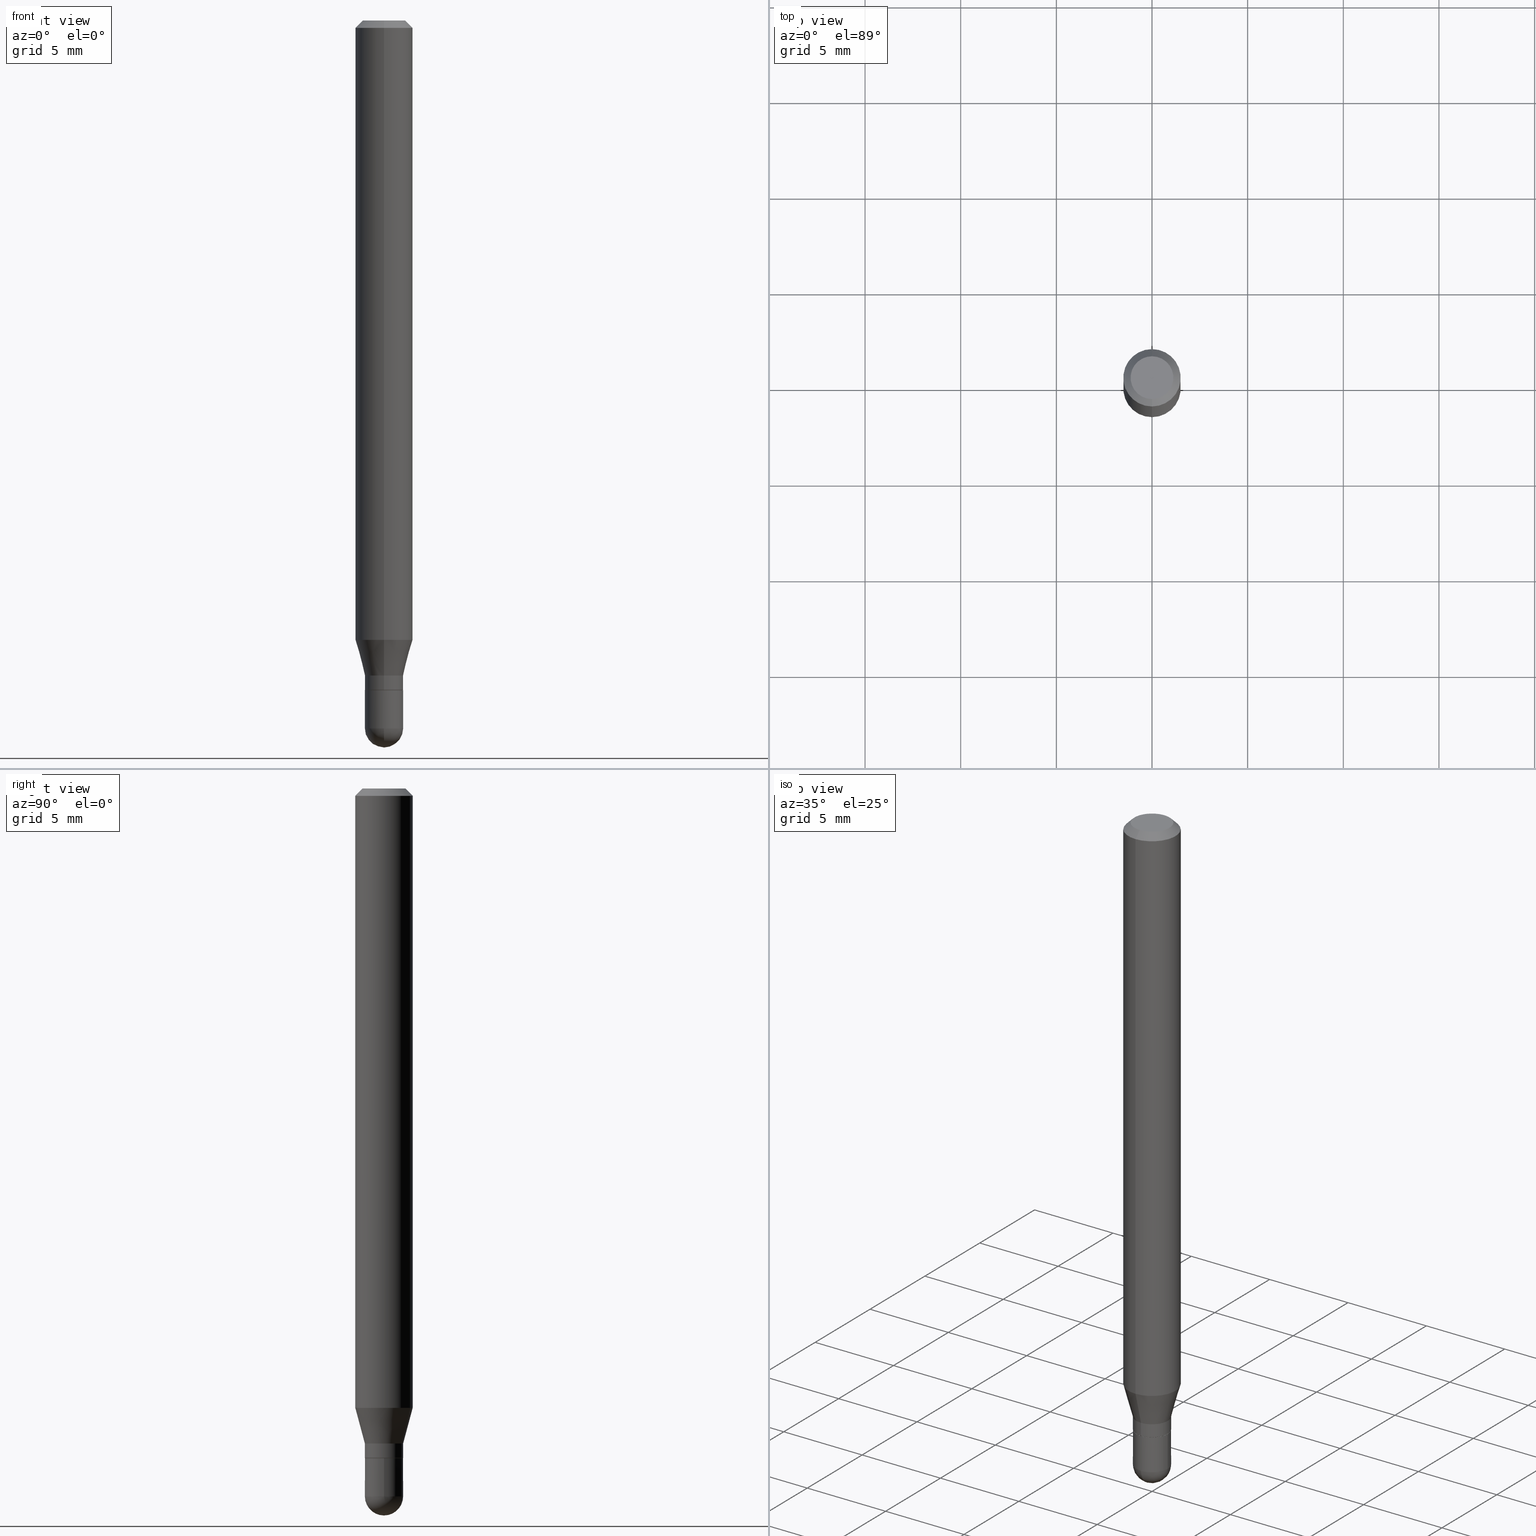
[diagram: canonical four-view strip — front | top / right | iso, engineering-drawing reading convention]
A machine part, canonical four-view strip (front | top / right | iso — engineering-drawing reading convention). The complete STEP part file that produces these views, byte-faithful:
ISO-10303-21;
HEADER;
FILE_DESCRIPTION (( 'STEP AP203' ),
    '1' );
FILE_NAME ('02937.STEP',
    '2024-03-07T21:52:46',
    ( '' ),
    ( '' ),
    'SwSTEP 2.0',
    'SolidWorks 2023',
    '' );
FILE_SCHEMA (( 'CONFIG_CONTROL_DESIGN' ));
ENDSEC;

DATA;
#1 = CARTESIAN_POINT ( 'NONE',  ( 3.668162005102807892E-31, -5.237281014988430582E-17, -0.01500000000000009139 ) ) ;
#2 = ADVANCED_FACE ( 'NONE', ( #409 ), #485, .T. ) ;
#3 = AXIS2_PLACEMENT_3D ( 'NONE', #427, #500, #144 ) ;
#4 = CARTESIAN_POINT ( 'NONE',  ( 3.369856014923117948E-29, -4.811261284925853951E-15, -1.377999999999999892 ) ) ;
#5 = DIRECTION ( 'NONE',  ( 1.000000000000000000, 0.000000000000000000, 0.000000000000000000 ) ) ;
#6 = ORIENTED_EDGE ( 'NONE', *, *, #54, .F. ) ;
#7 = ORIENTED_EDGE ( 'NONE', *, *, #68, .T. ) ;
#8 = CIRCLE ( 'NONE', #292, 0.04404999999999999888 ) ;
#9 = CARTESIAN_POINT ( 'NONE',  ( 3.559071604062276693E-29, -5.091034425514398258E-15, -1.456749999999999989 ) ) ;
#10 = EDGE_LOOP ( 'NONE', ( #512, #134, #327, #281, #200 ) ) ;
#11 = CARTESIAN_POINT ( 'NONE',  ( 0.000000000000000000, 0.000000000000000000, 0.000000000000000000 ) ) ;
#12 = CC_DESIGN_PERSON_AND_ORGANIZATION_ASSIGNMENT ( #305, #196, ( #242 ) ) ;
#13 = AXIS2_PLACEMENT_3D ( 'NONE', #478, #230, #438 ) ;
#14 = CIRCLE ( 'NONE', #29, 0.03934999999999999609 ) ;
#15 = ORIENTED_EDGE ( 'NONE', *, *, #149, .T. ) ;
#16 = DIRECTION ( 'NONE',  ( -1.000000000000000000, 6.982962677686265922E-15, -4.876176775795935793E-29 ) ) ;
#17 = FACE_OUTER_BOUND ( 'NONE', #402, .T. ) ;
#18 = DIRECTION ( 'NONE',  ( -2.445468806185136877E-29, 3.491481338843145188E-15, 1.000000000000000000 ) ) ;
#19 = CYLINDRICAL_SURFACE ( 'NONE', #362, 0.03934999999999992670 ) ;
#20 = DIRECTION ( 'NONE',  ( -2.445468806185136597E-29, 3.491481338843145583E-15, 1.000000000000000000 ) ) ;
#21 = CARTESIAN_POINT ( 'NONE',  ( 3.369818162021092251E-29, -4.811315492436009059E-15, -1.377999999999999892 ) ) ;
#22 = CIRCLE ( 'NONE', #363, 0.03935000000000000303 ) ;
#23 = CARTESIAN_POINT ( 'NONE',  ( 0.000000000000000000, 0.000000000000000000, 0.000000000000000000 ) ) ;
#24 = CARTESIAN_POINT ( 'NONE',  ( 3.296699466052710378E-29, -4.706919024203907361E-15, -1.348100000000000076 ) ) ;
#25 = DIRECTION ( 'NONE',  ( -2.445468806185136597E-29, 3.491481338843145583E-15, 1.000000000000000000 ) ) ;
#26 = ORIENTED_EDGE ( 'NONE', *, *, #125, .F. ) ;
#27 = CARTESIAN_POINT ( 'NONE',  ( 2.241566850932911875E-45, -3.200435394043974313E-31, -9.166308008539417533E-17 ) ) ;
#28 = CIRCLE ( 'NONE', #484, 0.03934999999999999609 ) ;
#29 = AXIS2_PLACEMENT_3D ( 'NONE', #294, #25, #302 ) ;
#30 =( CONVERSION_BASED_UNIT ( 'INCH', #265 ) LENGTH_UNIT ( ) NAMED_UNIT ( #464 ) );
#31 = DIRECTION ( 'NONE',  ( -2.445441336735190408E-29, 3.491520676658932537E-15, 1.000000000000000000 ) ) ;
#32 = MANIFOLD_SOLID_BREP ( 'Body-Move/Copy2[2]', #190 ) ;
#33 = EDGE_CURVE ( 'NONE', #270, #511, #28, .T. ) ;
#34 = APPROVAL_STATUS ( 'not_yet_approved' ) ;
#35 = VERTEX_POINT ( 'NONE', #99 ) ;
#36 = VERTEX_POINT ( 'NONE', #293 ) ;
#37 = CIRCLE ( 'NONE', #225, 0.03885000000000000259 ) ;
#38 = AXIS2_PLACEMENT_3D ( 'NONE', #426, #106, #260 ) ;
#39 = CC_DESIGN_APPROVAL ( #160, ( #277 ) ) ;
#40 = PERSON_AND_ORGANIZATION ( #474, #122 ) ;
#41 = EDGE_CURVE ( 'NONE', #497, #232, #348, .T. ) ;
#42 = EDGE_LOOP ( 'NONE', ( #371, #331, #189, #354 ) ) ;
#43 = PERSON_AND_ORGANIZATION ( #474, #122 ) ;
#44 = EDGE_LOOP ( 'NONE', ( #179, #143, #167, #395 ) ) ;
#45 = ORIENTED_EDGE ( 'NONE', *, *, #166, .T. ) ;
#46 = CIRCLE ( 'NONE', #13, 0.03934999999999997528 ) ;
#47 = DIRECTION ( 'NONE',  ( -6.982962677686266711E-15, -1.000000000000000000, 6.942434545525451034E-15 ) ) ;
#48 = CARTESIAN_POINT ( 'NONE',  ( 3.653618261911701929E-29, -5.230833708775198744E-15, -1.496099999999999985 ) ) ;
#49 = CARTESIAN_POINT ( 'NONE',  ( 2.795985665216317880E-16, 0.03934999999999522213, -1.348100000000000298 ) ) ;
#50 = ORIENTED_EDGE ( 'NONE', *, *, #102, .T. ) ;
#51 = VECTOR ( 'NONE', #130, 39.37007874015748143 ) ;
#52 = CYLINDRICAL_SURFACE ( 'NONE', #319, 0.03934999999999992670 ) ;
#53 = FACE_OUTER_BOUND ( 'NONE', #431, .T. ) ;
#54 = EDGE_CURVE ( 'NONE', #261, #35, #314, .T. ) ;
#55 = VERTEX_POINT ( 'NONE', #255 ) ;
#56 = CC_DESIGN_PERSON_AND_ORGANIZATION_ASSIGNMENT ( #43, #117, ( #150 ) ) ;
#57 = CARTESIAN_POINT ( 'NONE',  ( 3.368595441352724894E-29, -4.809569732097678791E-15, -1.377499999999999947 ) ) ;
#58 = CARTESIAN_POINT ( 'NONE',  ( 3.559071604062276693E-29, -5.091034425514398258E-15, -1.456749999999999989 ) ) ;
#59 = DIRECTION ( 'NONE',  ( -2.445441336735190408E-29, 3.491520676658932537E-15, 1.000000000000000000 ) ) ;
#60 = DIRECTION ( 'NONE',  ( -2.445441336735190408E-29, 3.491520676658932931E-15, 1.000000000000000000 ) ) ;
#61 = DIRECTION ( 'NONE',  ( -6.982962677686266711E-15, -1.000000000000000000, 6.942434545525451034E-15 ) ) ;
#62 = ADVANCED_FACE ( 'NONE', ( #137 ), #414, .F. ) ;
#63 = CARTESIAN_POINT ( 'NONE',  ( 3.562436683410197186E-29, -5.086215440359751413E-15, -1.456749999999999767 ) ) ;
#64 = CARTESIAN_POINT ( 'NONE',  ( -2.747795813669210945E-16, -0.03935000000000463127, -1.348099999999999854 ) ) ;
#65 = CONICAL_SURFACE ( 'NONE', #355, 0.03885000000000000259, 0.7853981633974739252 ) ;
#66 = DIRECTION ( 'NONE',  ( -2.445441336735190408E-29, 3.491520676658932931E-15, 1.000000000000000000 ) ) ;
#67 = CC_DESIGN_PERSON_AND_ORGANIZATION_ASSIGNMENT ( #40, #146, ( #277 ) ) ;
#68 = EDGE_CURVE ( 'NONE', #55, #487, #257, .T. ) ;
#69 = ADVANCED_FACE ( 'NONE', ( #444 ), #52, .T. ) ;
#70 = FACE_OUTER_BOUND ( 'NONE', #236, .T. ) ;
#71 = ORIENTED_EDGE ( 'NONE', *, *, #259, .T. ) ;
#72 = FACE_OUTER_BOUND ( 'NONE', #208, .T. ) ;
#73 = DIRECTION ( 'NONE',  ( -6.982962677686265133E-15, -1.000000000000000000, 0.000000000000000000 ) ) ;
#74 = AXIS2_PLACEMENT_3D ( 'NONE', #1, #501, #176 ) ;
#75 = LOCAL_TIME ( 16, 52, 46.00000000000000000, #446 ) ;
#76 = PERSON_AND_ORGANIZATION ( #474, #122 ) ;
#77 = ORIENTED_EDGE ( 'NONE', *, *, #180, .T. ) ;
#78 = DATE_AND_TIME ( #185, #119 ) ;
#79 = DIRECTION ( 'NONE',  ( 2.445441336735190408E-29, -3.491520676658932537E-15, -1.000000000000000000 ) ) ;
#80 = EDGE_LOOP ( 'NONE', ( #77, #197 ) ) ;
#81 = ADVANCED_BREP_SHAPE_REPRESENTATION ( '02937', ( #184, #32, #461 ), #282 ) ;
#82 = SECURITY_CLASSIFICATION_LEVEL ( 'unclassified' ) ;
#83 = ORIENTED_EDGE ( 'NONE', *, *, #201, .T. ) ;
#84 = DIRECTION ( 'NONE',  ( -6.982962677686265133E-15, -1.000000000000000000, 0.000000000000000000 ) ) ;
#85 = CLOSED_SHELL ( 'NONE', ( #477, #310, #62, #195, #2 ) ) ;
#86 = CIRCLE ( 'NONE', #216, 0.03934999999999992670 ) ;
#87 = APPROVAL_STATUS ( 'not_yet_approved' ) ;
#88 = CARTESIAN_POINT ( 'NONE',  ( -2.747795813669188758E-16, -0.03935000000000507536, -1.456749999999999323 ) ) ;
#89 = DATE_AND_TIME ( #392, #278 ) ;
#90 = PRODUCT_DEFINITION_SHAPE ( 'NONE', 'NONE',  #277 ) ;
#91 = AXIS2_PLACEMENT_3D ( 'NONE', #23, #20, #491 ) ;
#92 = APPROVAL_ROLE ( '' ) ;
#93 = VERTEX_POINT ( 'NONE', #498 ) ;
#94 = EDGE_CURVE ( 'NONE', #373, #261, #417, .T. ) ;
#95 = FACE_OUTER_BOUND ( 'NONE', #183, .T. ) ;
#96 = ADVANCED_FACE ( 'NONE', ( #211 ), #19, .T. ) ;
#97 = ORIENTED_EDGE ( 'NONE', *, *, #166, .F. ) ;
#98 = CONICAL_SURFACE ( 'NONE', #74, 0.05904999999999999832, 0.7853981633974483900 ) ;
#99 = CARTESIAN_POINT ( 'NONE',  ( -2.747795813669213410E-16, -0.03935000000000487413, -1.377499999999999725 ) ) ;
#100 = SPHERICAL_SURFACE ( 'NONE', #118, 0.03934999999999997528 ) ;
#101 = CARTESIAN_POINT ( 'NONE',  ( -0.03935000000000000303, -4.669139796121204075E-15, -1.377999999999999892 ) ) ;
#102 = EDGE_CURVE ( 'NONE', #405, #232, #123, .T. ) ;
#103 = DIRECTION ( 'NONE',  ( -6.982962677686265922E-15, -1.000000000000000000, 4.626330217890369336E-15 ) ) ;
#104 = CARTESIAN_POINT ( 'NONE',  ( -4.123439461173426262E-16, -0.05905000000000441146, -1.274578599090892883 ) ) ;
#105 = VECTOR ( 'NONE', #318, 39.37007874015748143 ) ;
#106 = DIRECTION ( 'NONE',  ( -2.445441336735190408E-29, 3.491520676658932537E-15, 1.000000000000000000 ) ) ;
#107 = VECTOR ( 'NONE', #60, 39.37007874015748143 ) ;
#108 = ORIENTED_EDGE ( 'NONE', *, *, #155, .T. ) ;
#109 = DIRECTION ( 'NONE',  ( -6.982962677686265133E-15, -1.000000000000000000, 0.000000000000000000 ) ) ;
#110 = DIRECTION ( 'NONE',  ( -2.445468806185136597E-29, 3.491481338843145583E-15, 1.000000000000000000 ) ) ;
#111 = PERSON_AND_ORGANIZATION_ROLE ( 'design_owner' ) ;
#112 = VERTEX_POINT ( 'NONE', #48 ) ;
#113 = VECTOR ( 'NONE', #370, 39.37007874015748143 ) ;
#114 = DIRECTION ( 'NONE',  ( -2.445468806185136597E-29, 3.491481338843145583E-15, 1.000000000000000000 ) ) ;
#115 = APPROVAL_ROLE ( '' ) ;
#116 = LINE ( 'NONE', #165, #51 ) ;
#117 = PERSON_AND_ORGANIZATION_ROLE ( 'creator' ) ;
#118 = AXIS2_PLACEMENT_3D ( 'NONE', #58, #214, #47 ) ;
#119 = LOCAL_TIME ( 16, 52, 46.00000000000000000, #432 ) ;
#120 = ORIENTED_EDGE ( 'NONE', *, *, #486, .T. ) ;
#121 = AXIS2_PLACEMENT_3D ( 'NONE', #191, #276, #473 ) ;
#122 = ORGANIZATION ( 'UNSPECIFIED', 'UNSPECIFIED', '' ) ;
#123 = LINE ( 'NONE', #286, #341 ) ;
#124 = LINE ( 'NONE', #368, #508 ) ;
#125 = EDGE_CURVE ( 'NONE', #93, #229, #233, .T. ) ;
#126 = ORIENTED_EDGE ( 'NONE', *, *, #424, .F. ) ;
#127 = CARTESIAN_POINT ( 'NONE',  ( 3.668162005102807892E-31, -5.237281014988430582E-17, -0.01500000000000009139 ) ) ;
#128 = DIRECTION ( 'NONE',  ( -2.445441336735190408E-29, 3.491520676658932537E-15, 1.000000000000000000 ) ) ;
#129 = DIRECTION ( 'NONE',  ( -2.445468806185136597E-29, 3.491481338843145583E-15, 1.000000000000000000 ) ) ;
#130 = DIRECTION ( 'NONE',  ( 4.937700262164548042E-15, 0.7071067811865451302, -0.7071067811865499042 ) ) ;
#131 = VECTOR ( 'NONE', #213, 39.37007874015748143 ) ;
#132 = VECTOR ( 'NONE', #222, 39.37007874015748143 ) ;
#133 = PLANE ( 'NONE',  #3 ) ;
#134 = ORIENTED_EDGE ( 'NONE', *, *, #125, .T. ) ;
#135 = DIRECTION ( 'NONE',  ( -6.982962677686265133E-15, -1.000000000000000000, 3.491520676658932142E-15 ) ) ;
#136 = APPROVAL_PERSON_ORGANIZATION ( #235, #449, #115 ) ;
#137 = FACE_OUTER_BOUND ( 'NONE', #80, .T. ) ;
#138 = LINE ( 'NONE', #337, #234 ) ;
#139 = CARTESIAN_POINT ( 'NONE',  ( 4.195754854663704558E-16, 0.05904999999999558519, -1.274578599090893327 ) ) ;
#140 = CIRCLE ( 'NONE', #209, 0.05904999999999999832 ) ;
#141 = CARTESIAN_POINT ( 'NONE',  ( 2.241566850932911875E-45, -3.200435394043974313E-31, -9.166308008539417533E-17 ) ) ;
#142 = CONICAL_SURFACE ( 'NONE', #121, 0.03934999999999992670, 0.2617993877991502960 ) ;
#143 = ORIENTED_EDGE ( 'NONE', *, *, #54, .T. ) ;
#144 = DIRECTION ( 'NONE',  ( 6.982962677686265922E-15, 1.000000000000000000, -3.491520676658932931E-15 ) ) ;
#145 = DIRECTION ( 'NONE',  ( -2.445468806185136597E-29, 3.491481338843145583E-15, 1.000000000000000000 ) ) ;
#146 = PERSON_AND_ORGANIZATION_ROLE ( 'creator' ) ;
#147 = ORIENTED_EDGE ( 'NONE', *, *, #385, .F. ) ;
#148 = CALENDAR_DATE ( 2024, 7, 3 ) ;
#149 = EDGE_CURVE ( 'NONE', #112, #511, #46, .T. ) ;
#150 = PRODUCT_DEFINITION_FORMATION_WITH_SPECIFIED_SOURCE ( 'ANY', '', #303, .NOT_KNOWN. ) ;
#151 = APPLICATION_PROTOCOL_DEFINITION ( 'international standard', 'config_control_design', 1994, #440 ) ;
#152 = CARTESIAN_POINT ( 'NONE',  ( -4.123439461173736383E-16, -0.05905000000000005383, -0.01499999999999988495 ) ) ;
#153 = APPROVAL ( #304, 'UNSPECIFIED' ) ;
#154 = EDGE_CURVE ( 'NONE', #232, #497, #332, .T. ) ;
#155 = EDGE_CURVE ( 'NONE', #55, #413, #246, .T. ) ;
#156 = DIRECTION ( 'NONE',  ( 1.000000000000000000, -6.982962677686270655E-15, 0.000000000000000000 ) ) ;
#157 = FACE_OUTER_BOUND ( 'NONE', #274, .T. ) ;
#158 = AXIS2_PLACEMENT_3D ( 'NONE', #338, #110, #215 ) ;
#159 = LOCAL_TIME ( 16, 52, 46.00000000000000000, #269 ) ;
#160 = APPROVAL ( #87, 'UNSPECIFIED' ) ;
#161 = LINE ( 'NONE', #482, #428 ) ;
#162 = ORIENTED_EDGE ( 'NONE', *, *, #33, .F. ) ;
#163 = CIRCLE ( 'NONE', #315, 0.03885000000000000259 ) ;
#164 = ORIENTED_EDGE ( 'NONE', *, *, #353, .T. ) ;
#165 = CARTESIAN_POINT ( 'NONE',  ( 4.123439461173743285E-16, 0.05904999999999994975, -0.01500000000000029955 ) ) ;
#166 = EDGE_CURVE ( 'NONE', #413, #405, #140, .T. ) ;
#167 = ORIENTED_EDGE ( 'NONE', *, *, #301, .T. ) ;
#168 = ORIENTED_EDGE ( 'NONE', *, *, #486, .F. ) ;
#169 = DIRECTION ( 'NONE',  ( -6.982962677686265133E-15, -1.000000000000000000, 3.491520676658932142E-15 ) ) ;
#170 = LINE ( 'NONE', #465, #107 ) ;
#171 = EDGE_CURVE ( 'NONE', #270, #328, #411, .T. ) ;
#172 = DIRECTION ( 'NONE',  ( -2.445441336735190408E-29, 3.491520676658932537E-15, 1.000000000000000000 ) ) ;
#173 = DIRECTION ( 'NONE',  ( -6.982962677686265133E-15, -1.000000000000000000, 6.942434545525459712E-15 ) ) ;
#174 = CC_DESIGN_PERSON_AND_ORGANIZATION_ASSIGNMENT ( #76, #111, ( #303 ) ) ;
#175 = DIRECTION ( 'NONE',  ( 1.000000000000000000, -6.982962677686270655E-15, 0.000000000000000000 ) ) ;
#176 = DIRECTION ( 'NONE',  ( 6.982962677686265922E-15, 1.000000000000000000, -3.505890868245046092E-15 ) ) ;
#177 = CARTESIAN_POINT ( 'NONE',  ( 3.296699466052710378E-29, -4.706919024203907361E-15, -1.348100000000000076 ) ) ;
#178 = EDGE_CURVE ( 'NONE', #405, #413, #275, .T. ) ;
#179 = ORIENTED_EDGE ( 'NONE', *, *, #353, .F. ) ;
#180 = EDGE_CURVE ( 'NONE', #328, #369, #22, .T. ) ;
#181 = CARTESIAN_POINT ( 'NONE',  ( 3.369818162021092251E-29, -4.811315492436009059E-15, -1.377999999999999892 ) ) ;
#182 = VECTOR ( 'NONE', #309, 39.37007874015748143 ) ;
#183 = EDGE_LOOP ( 'NONE', ( #290, #359, #267, #412 ) ) ;
#184 = MANIFOLD_SOLID_BREP ( 'Body-Move/Copy2[1]', #85 ) ;
#185 = CALENDAR_DATE ( 2024, 7, 3 ) ;
#186 = ORIENTED_EDGE ( 'NONE', *, *, #462, .T. ) ;
#187 = EDGE_LOOP ( 'NONE', ( #479, #7, #186, #97 ) ) ;
#188 = DATE_AND_TIME ( #434, #159 ) ;
#189 = ORIENTED_EDGE ( 'NONE', *, *, #436, .F. ) ;
#190 = CLOSED_SHELL ( 'NONE', ( #96, #360, #204, #323, #271, #383, #308, #326, #345, #460, #339, #69 ) ) ;
#191 = CARTESIAN_POINT ( 'NONE',  ( 3.296699466052710378E-29, -4.706919024203907361E-15, -1.348100000000000076 ) ) ;
#192 = EDGE_LOOP ( 'NONE', ( #447, #240, #450, #398 ) ) ;
#193 = AXIS2_PLACEMENT_3D ( 'NONE', #237, #79, #312 ) ;
#194 = CC_DESIGN_SECURITY_CLASSIFICATION ( #242, ( #150 ) ) ;
#195 = ADVANCED_FACE ( 'NONE', ( #321 ), #100, .T. ) ;
#196 = PERSON_AND_ORGANIZATION_ROLE ( 'classification_officer' ) ;
#197 = ORIENTED_EDGE ( 'NONE', *, *, #451, .T. ) ;
#198 = FACE_OUTER_BOUND ( 'NONE', #223, .T. ) ;
#199 = PERSON_AND_ORGANIZATION_ROLE ( 'design_supplier' ) ;
#200 = ORIENTED_EDGE ( 'NONE', *, *, #451, .F. ) ;
#201 = EDGE_CURVE ( 'NONE', #93, #369, #161, .T. ) ;
#202 = AXIS2_PLACEMENT_3D ( 'NONE', #459, #343, #254 ) ;
#203 = FACE_OUTER_BOUND ( 'NONE', #364, .T. ) ;
#204 = ADVANCED_FACE ( 'NONE', ( #157 ), #333, .T. ) ;
#205 = CYLINDRICAL_SURFACE ( 'NONE', #496, 0.05904999999999999832 ) ;
#206 = CALENDAR_DATE ( 2024, 7, 3 ) ;
#207 = DIRECTION ( 'NONE',  ( -2.445468806185136597E-29, 3.491481338843145583E-15, 1.000000000000000000 ) ) ;
#208 = EDGE_LOOP ( 'NONE', ( #492, #507, #71, #6 ) ) ;
#209 = AXIS2_PLACEMENT_3D ( 'NONE', #253, #128, #103 ) ;
#210 = ORIENTED_EDGE ( 'NONE', *, *, #301, .F. ) ;
#211 = FACE_OUTER_BOUND ( 'NONE', #344, .T. ) ;
#212 = CARTESIAN_POINT ( 'NONE',  ( 0.000000000000000000, 0.000000000000000000, 0.000000000000000000 ) ) ;
#213 = DIRECTION ( 'NONE',  ( 1.839019923739601104E-15, 0.2588190451025250693, 0.9659258262890670910 ) ) ;
#214 = DIRECTION ( 'NONE',  ( 1.000000000000000000, -6.982962677686266711E-15, 4.883557194083112901E-29 ) ) ;
#215 = DIRECTION ( 'NONE',  ( 1.000000000000000000, -6.982962677686269077E-15, 0.000000000000000000 ) ) ;
#216 = AXIS2_PLACEMENT_3D ( 'NONE', #177, #297, #422 ) ;
#217 = DIRECTION ( 'NONE',  ( 2.438088387897960049E-29, -3.491481338843145188E-15, -1.000000000000000000 ) ) ;
#218 = DIRECTION ( 'NONE',  ( -2.445441336735190408E-29, 3.491520676658932537E-15, 1.000000000000000000 ) ) ;
#219 = CARTESIAN_POINT ( 'NONE',  ( 0.000000000000000000, 0.000000000000000000, 0.000000000000000000 ) ) ;
#220 = ORIENTED_EDGE ( 'NONE', *, *, #378, .T. ) ;
#221 = ORIENTED_EDGE ( 'NONE', *, *, #436, .T. ) ;
#222 = DIRECTION ( 'NONE',  ( -1.807323732225330928E-15, -0.2588190451025182970, 0.9659258262890689783 ) ) ;
#223 = EDGE_LOOP ( 'NONE', ( #220, #108, #244, #325 ) ) ;
#224 = DIRECTION ( 'NONE',  ( -2.445441336735190408E-29, 3.491520676658932537E-15, 1.000000000000000000 ) ) ;
#225 = AXIS2_PLACEMENT_3D ( 'NONE', #377, #381, #73 ) ;
#226 = DIRECTION ( 'NONE',  ( -2.445441336735190408E-29, 3.491520676658932537E-15, 1.000000000000000000 ) ) ;
#227 = CARTESIAN_POINT ( 'NONE',  ( 2.795985665216315908E-16, 0.03934999999999497233, -1.377500000000000169 ) ) ;
#228 = APPLICATION_CONTEXT ( 'configuration controlled 3d designs of mechanical parts and assemblies' ) ;
#229 = VERTEX_POINT ( 'NONE', #88 ) ;
#230 = DIRECTION ( 'NONE',  ( 1.000000000000000000, -7.105427357601001070E-15, 4.926315508542082329E-29 ) ) ;
#231 = APPROVAL_ROLE ( '' ) ;
#232 = VERTEX_POINT ( 'NONE', #152 ) ;
#233 = CIRCLE ( 'NONE', #453, 0.03934999999999999609 ) ;
#234 = VECTOR ( 'NONE', #66, 39.37007874015748143 ) ;
#235 = PERSON_AND_ORGANIZATION ( #474, #122 ) ;
#236 = EDGE_LOOP ( 'NONE', ( #251, #83, #481, #357, #442 ) ) ;
#237 = CARTESIAN_POINT ( 'NONE',  ( 3.668162005102807892E-31, -5.237281014988430582E-17, -0.01500000000000009139 ) ) ;
#238 = CARTESIAN_POINT ( 'NONE',  ( 3.116907193134900210E-29, -4.450217532752829933E-15, -1.274578599090893105 ) ) ;
#239 =( NAMED_UNIT ( * ) PLANE_ANGLE_UNIT ( ) SI_UNIT ( $, .RADIAN. ) );
#240 = ORIENTED_EDGE ( 'NONE', *, *, #400, .T. ) ;
#241 = AXIS2_PLACEMENT_3D ( 'NONE', #141, #509, #300 ) ;
#242 = SECURITY_CLASSIFICATION ( '', '', #82 ) ;
#243 = SHAPE_DEFINITION_REPRESENTATION ( #90, #81 ) ;
#244 = ORIENTED_EDGE ( 'NONE', *, *, #178, .F. ) ;
#245 = DIRECTION ( 'NONE',  ( -2.445441336735190408E-29, 3.491520676658932931E-15, 1.000000000000000000 ) ) ;
#246 = LINE ( 'NONE', #49, #131 ) ;
#247 = CARTESIAN_POINT ( 'NONE',  ( 0.03935000000000000303, -5.086040866292808868E-15, -1.377999999999999892 ) ) ;
#248 = ORIENTED_EDGE ( 'NONE', *, *, #493, .F. ) ;
#249 = AXIS2_PLACEMENT_3D ( 'NONE', #127, #172, #288 ) ;
#250 = AXIS2_PLACEMENT_3D ( 'NONE', #21, #456, #296 ) ;
#251 = ORIENTED_EDGE ( 'NONE', *, *, #358, .T. ) ;
#252 = CARTESIAN_POINT ( 'NONE',  ( 2.747795813669883449E-16, 0.03934999999999518744, -1.378000000000000114 ) ) ;
#253 = CARTESIAN_POINT ( 'NONE',  ( 3.116907193134900210E-29, -4.450217532752829933E-15, -1.274578599090893105 ) ) ;
#254 = DIRECTION ( 'NONE',  ( -6.982962677686266711E-15, -1.000000000000000000, 0.000000000000000000 ) ) ;
#255 = CARTESIAN_POINT ( 'NONE',  ( 3.495870259940009986E-16, 0.03934999999999522213, -1.348100000000000298 ) ) ;
#256 = CARTESIAN_POINT ( 'NONE',  ( -2.747795813669210945E-16, -0.03935000000000463127, -1.348099999999999854 ) ) ;
#257 = CIRCLE ( 'NONE', #396, 0.03934999999999992670 ) ;
#258 = CIRCLE ( 'NONE', #241, 0.04404999999999999888 ) ;
#259 = EDGE_CURVE ( 'NONE', #391, #35, #279, .T. ) ;
#260 = DIRECTION ( 'NONE',  ( -6.982962677686265133E-15, -1.000000000000000000, 6.942434545525459712E-15 ) ) ;
#261 = VERTEX_POINT ( 'NONE', #227 ) ;
#262 = DIRECTION ( 'NONE',  ( -2.445441336735190408E-29, 3.491520676658932537E-15, 1.000000000000000000 ) ) ;
#263 = ORIENTED_EDGE ( 'NONE', *, *, #334, .T. ) ;
#264 = CARTESIAN_POINT ( 'NONE',  ( 4.195754854663705051E-16, 0.05904999999999994975, -0.01500000000000029955 ) ) ;
#265 = LENGTH_MEASURE_WITH_UNIT ( LENGTH_MEASURE( 0.02539999999999999897 ), #352 );
#266 = APPROVAL_PERSON_ORGANIZATION ( #429, #160, #231 ) ;
#267 = ORIENTED_EDGE ( 'NONE', *, *, #272, .T. ) ;
#268 = DIRECTION ( 'NONE',  ( 1.000000000000000000, -6.982962677686269077E-15, 0.000000000000000000 ) ) ;
#269 = COORDINATED_UNIVERSAL_TIME_OFFSET ( 5, 0, .BEHIND. ) ;
#270 = VERTEX_POINT ( 'NONE', #394 ) ;
#271 = ADVANCED_FACE ( 'NONE', ( #198 ), #142, .T. ) ;
#272 = EDGE_CURVE ( 'NONE', #285, #497, #116, .T. ) ;
#273 = CARTESIAN_POINT ( 'NONE',  ( 2.795985665216348448E-16, 0.03934999999999489600, -1.456749999999999989 ) ) ;
#274 = EDGE_LOOP ( 'NONE', ( #168, #263, #340, #384 ) ) ;
#275 = CIRCLE ( 'NONE', #468, 0.05904999999999999832 ) ;
#276 = DIRECTION ( 'NONE',  ( -2.445441336735190408E-29, 3.491520676658932537E-15, 1.000000000000000000 ) ) ;
#277 = PRODUCT_DEFINITION ( 'UNKNOWN', '', #150, #351 ) ;
#278 = LOCAL_TIME ( 16, 52, 46.00000000000000000, #311 ) ;
#279 = LINE ( 'NONE', #403, #182 ) ;
#280 = APPROVAL_DATE_TIME ( #284, #153 ) ;
#281 = ORIENTED_EDGE ( 'NONE', *, *, #171, .T. ) ;
#282 =( GEOMETRIC_REPRESENTATION_CONTEXT ( 3 ) GLOBAL_UNCERTAINTY_ASSIGNED_CONTEXT ( ( #489 ) ) GLOBAL_UNIT_ASSIGNED_CONTEXT ( ( #30, #239, #401 ) ) REPRESENTATION_CONTEXT ( 'NONE', 'WORKASPACE' ) );
#283 = PRODUCT_RELATED_PRODUCT_CATEGORY ( 'detail', '', ( #303 ) ) ;
#284 = DATE_AND_TIME ( #206, #75 ) ;
#285 = VERTEX_POINT ( 'NONE', #316 ) ;
#286 = CARTESIAN_POINT ( 'NONE',  ( -4.123439461173739834E-16, -0.05904999999999999832, 2.061742959567099671E-16 ) ) ;
#287 = EDGE_LOOP ( 'NONE', ( #248, #425 ) ) ;
#288 = DIRECTION ( 'NONE',  ( -6.982962677686265922E-15, -1.000000000000000000, 3.505890868245046092E-15 ) ) ;
#289 = FACE_OUTER_BOUND ( 'NONE', #192, .T. ) ;
#290 = ORIENTED_EDGE ( 'NONE', *, *, #334, .F. ) ;
#291 = VECTOR ( 'NONE', #18, 39.37007874015748143 ) ;
#292 = AXIS2_PLACEMENT_3D ( 'NONE', #27, #224, #135 ) ;
#293 = CARTESIAN_POINT ( 'NONE',  ( -3.536586717851222218E-16, -0.04404999999999999888, 6.213840572143178795E-17 ) ) ;
#294 = CARTESIAN_POINT ( 'NONE',  ( 3.562436683410197186E-29, -5.086215440359751413E-15, -1.456749999999999767 ) ) ;
#295 = DIRECTION ( 'NONE',  ( -2.445441336735190408E-29, 3.491520676658932537E-15, 1.000000000000000000 ) ) ;
#296 = DIRECTION ( 'NONE',  ( -6.982962677686265922E-15, -1.000000000000000000, 3.491520676658932931E-15 ) ) ;
#297 = DIRECTION ( 'NONE',  ( -2.445441336735190408E-29, 3.491520676658932537E-15, 1.000000000000000000 ) ) ;
#298 = AXIS2_PLACEMENT_3D ( 'NONE', #382, #31, #483 ) ;
#299 = AXIS2_PLACEMENT_3D ( 'NONE', #11, #445, #490 ) ;
#300 = DIRECTION ( 'NONE',  ( -6.982962677686265133E-15, -1.000000000000000000, 3.491520676658932142E-15 ) ) ;
#301 = EDGE_CURVE ( 'NONE', #35, #487, #124, .T. ) ;
#302 = DIRECTION ( 'NONE',  ( 1.000000000000000000, -6.982962677686270655E-15, 0.000000000000000000 ) ) ;
#303 = PRODUCT ( '02937', '02937', '', ( #437 ) ) ;
#304 = APPROVAL_STATUS ( 'not_yet_approved' ) ;
#305 = PERSON_AND_ORGANIZATION ( #474, #122 ) ;
#306 = AXIS2_PLACEMENT_3D ( 'NONE', #9, #419, #61 ) ;
#307 = APPLICATION_PROTOCOL_DEFINITION ( 'international standard', 'config_control_design', 1994, #228 ) ;
#308 = ADVANCED_FACE ( 'NONE', ( #17 ), #205, .T. ) ;
#309 = DIRECTION ( 'NONE',  ( -4.937700262164674260E-15, -0.7071067811865632269, 0.7071067811865319186 ) ) ;
#310 = ADVANCED_FACE ( 'NONE', ( #53 ), #480, .T. ) ;
#311 = COORDINATED_UNIVERSAL_TIME_OFFSET ( 5, 0, .BEHIND. ) ;
#312 = DIRECTION ( 'NONE',  ( 6.982962677686265922E-15, 1.000000000000000000, -3.505890868245046092E-15 ) ) ;
#313 = APPROVAL_DATE_TIME ( #188, #449 ) ;
#314 = CIRCLE ( 'NONE', #387, 0.03934999999999992670 ) ;
#315 = AXIS2_PLACEMENT_3D ( 'NONE', #181, #218, #109 ) ;
#316 = CARTESIAN_POINT ( 'NONE',  ( 3.599717260347271507E-16, 0.04404999999999999888, -2.454645658922201879E-16 ) ) ;
#317 = LINE ( 'NONE', #366, #113 ) ;
#318 = DIRECTION ( 'NONE',  ( 5.024295867788190974E-15, 0.7071067811865681119, 0.7071067811865270336 ) ) ;
#319 = AXIS2_PLACEMENT_3D ( 'NONE', #212, #59, #335 ) ;
#320 = APPROVAL_PERSON_ORGANIZATION ( #510, #153, #92 ) ;
#321 = FACE_OUTER_BOUND ( 'NONE', #467, .T. ) ;
#322 = DIRECTION ( 'NONE',  ( -6.982962677686265922E-15, -1.000000000000000000, 3.491520676658932537E-15 ) ) ;
#323 = ADVANCED_FACE ( 'NONE', ( #289 ), #471, .T. ) ;
#324 = ORIENTED_EDGE ( 'NONE', *, *, #41, .F. ) ;
#325 = ORIENTED_EDGE ( 'NONE', *, *, #462, .F. ) ;
#326 = ADVANCED_FACE ( 'NONE', ( #95 ), #98, .T. ) ;
#327 = ORIENTED_EDGE ( 'NONE', *, *, #385, .T. ) ;
#328 = VERTEX_POINT ( 'NONE', #247 ) ;
#329 = DIRECTION ( 'NONE',  ( -2.445441336735190408E-29, 3.491520676658932931E-15, 1.000000000000000000 ) ) ;
#330 = PLANE ( 'NONE',  #250 ) ;
#331 = ORIENTED_EDGE ( 'NONE', *, *, #94, .T. ) ;
#332 = CIRCLE ( 'NONE', #298, 0.05904999999999999832 ) ;
#333 = CONICAL_SURFACE ( 'NONE', #193, 0.05904999999999999832, 0.7853981633974483900 ) ;
#334 = EDGE_CURVE ( 'NONE', #36, #232, #317, .T. ) ;
#335 = DIRECTION ( 'NONE',  ( -6.982962677686265133E-15, -1.000000000000000000, 3.491520676658932142E-15 ) ) ;
#336 = DIRECTION ( 'NONE',  ( -6.982962677686265133E-15, -1.000000000000000000, 0.000000000000000000 ) ) ;
#337 = CARTESIAN_POINT ( 'NONE',  ( 2.795985665215988037E-16, 0.03934999999999992670, -1.373913386265287292E-16 ) ) ;
#338 = CARTESIAN_POINT ( 'NONE',  ( 3.369856014923117948E-29, -4.811261284925853951E-15, -1.377999999999999892 ) ) ;
#339 = ADVANCED_FACE ( 'NONE', ( #72 ), #420, .T. ) ;
#340 = ORIENTED_EDGE ( 'NONE', *, *, #154, .T. ) ;
#341 = VECTOR ( 'NONE', #329, 39.37007874015748143 ) ;
#342 = CIRCLE ( 'NONE', #202, 0.03934999999999997528 ) ;
#343 = DIRECTION ( 'NONE',  ( -1.000000000000000000, 6.982962677686265922E-15, -4.883557194083112340E-29 ) ) ;
#344 = EDGE_LOOP ( 'NONE', ( #221, #164, #380, #210 ) ) ;
#345 = ADVANCED_FACE ( 'NONE', ( #203 ), #133, .F. ) ;
#346 = DATE_TIME_ROLE ( 'classification_date' ) ;
#347 = PERSON_AND_ORGANIZATION ( #474, #122 ) ;
#348 = CIRCLE ( 'NONE', #249, 0.05904999999999999832 ) ;
#349 = CARTESIAN_POINT ( 'NONE',  ( 0.000000000000000000, 0.000000000000000000, 0.000000000000000000 ) ) ;
#350 = AXIS2_PLACEMENT_3D ( 'NONE', #418, #145, #175 ) ;
#351 = DESIGN_CONTEXT ( 'detailed design', #228, 'design' ) ;
#352 =( LENGTH_UNIT ( ) NAMED_UNIT ( * ) SI_UNIT ( $, .METRE. ) );
#353 = EDGE_CURVE ( 'NONE', #261, #55, #138, .T. ) ;
#354 = ORIENTED_EDGE ( 'NONE', *, *, #259, .F. ) ;
#355 = AXIS2_PLACEMENT_3D ( 'NONE', #423, #262, #336 ) ;
#356 = CARTESIAN_POINT ( 'NONE',  ( 0.000000000000000000, 0.000000000000000000, 0.000000000000000000 ) ) ;
#357 = ORIENTED_EDGE ( 'NONE', *, *, #171, .F. ) ;
#358 = EDGE_CURVE ( 'NONE', #511, #93, #410, .T. ) ;
#359 = ORIENTED_EDGE ( 'NONE', *, *, #504, .F. ) ;
#360 = ADVANCED_FACE ( 'NONE', ( #390 ), #65, .T. ) ;
#361 = ORIENTED_EDGE ( 'NONE', *, *, #424, .T. ) ;
#362 = AXIS2_PLACEMENT_3D ( 'NONE', #406, #367, #169 ) ;
#363 = AXIS2_PLACEMENT_3D ( 'NONE', #4, #114, #268 ) ;
#364 = EDGE_LOOP ( 'NONE', ( #443, #120 ) ) ;
#365 = CC_DESIGN_APPROVAL ( #449, ( #150 ) ) ;
#366 = CARTESIAN_POINT ( 'NONE',  ( -4.051124067684085231E-16, -0.05905000000000005383, -0.01499999999999988495 ) ) ;
#367 = DIRECTION ( 'NONE',  ( -2.445441336735190408E-29, 3.491520676658932537E-15, 1.000000000000000000 ) ) ;
#368 = CARTESIAN_POINT ( 'NONE',  ( -2.747795813669540294E-16, -0.03934999999999992670, 1.373913386265287292E-16 ) ) ;
#369 = VERTEX_POINT ( 'NONE', #101 ) ;
#370 = DIRECTION ( 'NONE',  ( -4.851104656540964275E-15, -0.7071067811865500152, -0.7071067811865450192 ) ) ;
#371 = ORIENTED_EDGE ( 'NONE', *, *, #493, .T. ) ;
#372 = DIRECTION ( 'NONE',  ( -6.982962677686265133E-15, -1.000000000000000000, 6.942434545525459712E-15 ) ) ;
#373 = VERTEX_POINT ( 'NONE', #505 ) ;
#374 = FACE_OUTER_BOUND ( 'NONE', #287, .T. ) ;
#375 = AXIS2_PLACEMENT_3D ( 'NONE', #24, #415, #173 ) ;
#376 = DIRECTION ( 'NONE',  ( -2.445441336735190408E-29, 3.491520676658932537E-15, 1.000000000000000000 ) ) ;
#377 = CARTESIAN_POINT ( 'NONE',  ( 3.369818162021092251E-29, -4.811315492436009059E-15, -1.377999999999999892 ) ) ;
#378 = EDGE_CURVE ( 'NONE', #487, #55, #86, .T. ) ;
#379 = DIRECTION ( 'NONE',  ( 1.000000000000000000, -6.982962677686266711E-15, 4.876176775795936353E-29 ) ) ;
#380 = ORIENTED_EDGE ( 'NONE', *, *, #378, .F. ) ;
#381 = DIRECTION ( 'NONE',  ( -2.445441336735190408E-29, 3.491520676658932537E-15, 1.000000000000000000 ) ) ;
#382 = CARTESIAN_POINT ( 'NONE',  ( 3.668162005102807892E-31, -5.237281014988430582E-17, -0.01500000000000009139 ) ) ;
#383 = ADVANCED_FACE ( 'NONE', ( #503 ), #476, .T. ) ;
#384 = ORIENTED_EDGE ( 'NONE', *, *, #272, .F. ) ;
#385 = EDGE_CURVE ( 'NONE', #229, #270, #14, .T. ) ;
#386 = CARTESIAN_POINT ( 'NONE',  ( 3.369818162021092251E-29, -4.811315492436009059E-15, -1.377999999999999892 ) ) ;
#387 = AXIS2_PLACEMENT_3D ( 'NONE', #57, #376, #455 ) ;
#388 = CIRCLE ( 'NONE', #38, 0.03934999999999992670 ) ;
#389 = CC_DESIGN_PERSON_AND_ORGANIZATION_ASSIGNMENT ( #347, #199, ( #150 ) ) ;
#390 = FACE_OUTER_BOUND ( 'NONE', #42, .T. ) ;
#391 = VERTEX_POINT ( 'NONE', #499 ) ;
#392 = CALENDAR_DATE ( 2024, 7, 3 ) ;
#393 = DIRECTION ( 'NONE',  ( -6.982962677686265922E-15, -1.000000000000000000, 4.626330217890369336E-15 ) ) ;
#394 = CARTESIAN_POINT ( 'NONE',  ( 0.03934999999999999609, -5.223517944009757599E-15, -1.456749999999999767 ) ) ;
#395 = ORIENTED_EDGE ( 'NONE', *, *, #68, .F. ) ;
#396 = AXIS2_PLACEMENT_3D ( 'NONE', #457, #295, #372 ) ;
#397 = APPROVAL_DATE_TIME ( #472, #160 ) ;
#398 = ORIENTED_EDGE ( 'NONE', *, *, #102, .F. ) ;
#399 = CC_DESIGN_DATE_AND_TIME_ASSIGNMENT ( #89, #475, ( #277 ) ) ;
#400 = EDGE_CURVE ( 'NONE', #413, #497, #170, .T. ) ;
#401 =( NAMED_UNIT ( * ) SI_UNIT ( $, .STERADIAN. ) SOLID_ANGLE_UNIT ( ) );
#402 = EDGE_LOOP ( 'NONE', ( #488, #45, #50, #324 ) ) ;
#403 = CARTESIAN_POINT ( 'NONE',  ( -2.712881000280777422E-16, -0.03885000000000481818, -1.377999999999999892 ) ) ;
#404 = AXIS2_PLACEMENT_3D ( 'NONE', #386, #430, #84 ) ;
#405 = VERTEX_POINT ( 'NONE', #104 ) ;
#406 = CARTESIAN_POINT ( 'NONE',  ( 0.000000000000000000, 0.000000000000000000, 0.000000000000000000 ) ) ;
#407 = DIRECTION ( 'NONE',  ( -2.445441336735190408E-29, 3.491520676658932537E-15, 1.000000000000000000 ) ) ;
#408 = ORIENTED_EDGE ( 'NONE', *, *, #149, .F. ) ;
#409 = FACE_OUTER_BOUND ( 'NONE', #10, .T. ) ;
#410 = CIRCLE ( 'NONE', #350, 0.03934999999999999609 ) ;
#411 = LINE ( 'NONE', #416, #291 ) ;
#412 = ORIENTED_EDGE ( 'NONE', *, *, #41, .T. ) ;
#413 = VERTEX_POINT ( 'NONE', #139 ) ;
#414 = PLANE ( 'NONE',  #506 ) ;
#415 = DIRECTION ( 'NONE',  ( -2.445441336735190408E-29, 3.491520676658932537E-15, 1.000000000000000000 ) ) ;
#416 = CARTESIAN_POINT ( 'NONE',  ( 0.03935000000000000303, -2.747795813669546211E-16, 1.918775561275701074E-30 ) ) ;
#417 = LINE ( 'NONE', #448, #105 ) ;
#418 = CARTESIAN_POINT ( 'NONE',  ( 3.562436683410197186E-29, -5.086215440359751413E-15, -1.456749999999999767 ) ) ;
#419 = DIRECTION ( 'NONE',  ( 1.000000000000000000, -6.982962677686266711E-15, 4.883557194083112901E-29 ) ) ;
#420 = CONICAL_SURFACE ( 'NONE', #404, 0.03885000000000000259, 0.7853981633974739252 ) ;
#421 = CC_DESIGN_APPROVAL ( #153, ( #242 ) ) ;
#422 = DIRECTION ( 'NONE',  ( -6.982962677686265133E-15, -1.000000000000000000, 6.942434545525459712E-15 ) ) ;
#423 = CARTESIAN_POINT ( 'NONE',  ( 3.369818162021092251E-29, -4.811315492436009059E-15, -1.377999999999999892 ) ) ;
#424 = EDGE_CURVE ( 'NONE', #112, #229, #342, .T. ) ;
#425 = ORIENTED_EDGE ( 'NONE', *, *, #502, .F. ) ;
#426 = CARTESIAN_POINT ( 'NONE',  ( 3.368595441352724894E-29, -4.809569732097678791E-15, -1.377499999999999947 ) ) ;
#427 = CARTESIAN_POINT ( 'NONE',  ( 3.075995059520799729E-16, 0.04404999999999999888, -1.996330258495230756E-16 ) ) ;
#428 = VECTOR ( 'NONE', #435, 39.37007874015748143 ) ;
#429 = PERSON_AND_ORGANIZATION ( #474, #122 ) ;
#430 = DIRECTION ( 'NONE',  ( -2.445441336735190408E-29, 3.491520676658932537E-15, 1.000000000000000000 ) ) ;
#431 = EDGE_LOOP ( 'NONE', ( #126, #15, #162, #147 ) ) ;
#432 = COORDINATED_UNIVERSAL_TIME_OFFSET ( 5, 0, .BEHIND. ) ;
#433 = ORIENTED_EDGE ( 'NONE', *, *, #358, .F. ) ;
#434 = CALENDAR_DATE ( 2024, 7, 3 ) ;
#435 = DIRECTION ( 'NONE',  ( -2.445468806185136877E-29, 3.491481338843145188E-15, 1.000000000000000000 ) ) ;
#436 = EDGE_CURVE ( 'NONE', #35, #261, #388, .T. ) ;
#437 = MECHANICAL_CONTEXT ( 'NONE', #440, 'mechanical' ) ;
#438 = DIRECTION ( 'NONE',  ( 7.105427357601000281E-15, 1.000000000000000000, 0.000000000000000000 ) ) ;
#439 = DIRECTION ( 'NONE',  ( 0.000000000000000000, 0.000000000000000000, 1.000000000000000000 ) ) ;
#440 = APPLICATION_CONTEXT ( 'configuration controlled 3d designs of mechanical parts and assemblies' ) ;
#441 = CC_DESIGN_DATE_AND_TIME_ASSIGNMENT ( #78, #346, ( #242 ) ) ;
#442 = ORIENTED_EDGE ( 'NONE', *, *, #33, .T. ) ;
#443 = ORIENTED_EDGE ( 'NONE', *, *, #504, .T. ) ;
#444 = FACE_OUTER_BOUND ( 'NONE', #44, .T. ) ;
#445 = DIRECTION ( 'NONE',  ( -2.445441336735190408E-29, 3.491520676658932537E-15, 1.000000000000000000 ) ) ;
#446 = COORDINATED_UNIVERSAL_TIME_OFFSET ( 5, 0, .BEHIND. ) ;
#447 = ORIENTED_EDGE ( 'NONE', *, *, #178, .T. ) ;
#448 = CARTESIAN_POINT ( 'NONE',  ( 2.760458528428325658E-16, 0.03884999999999518699, -1.377999999999999892 ) ) ;
#449 = APPROVAL ( #34, 'UNSPECIFIED' ) ;
#450 = ORIENTED_EDGE ( 'NONE', *, *, #154, .F. ) ;
#451 = EDGE_CURVE ( 'NONE', #369, #328, #469, .T. ) ;
#452 = DIRECTION ( 'NONE',  ( 1.000000000000000000, -6.982962677686270655E-15, 0.000000000000000000 ) ) ;
#453 = AXIS2_PLACEMENT_3D ( 'NONE', #494, #207, #156 ) ;
#454 = AXIS2_PLACEMENT_3D ( 'NONE', #219, #463, #379 ) ;
#455 = DIRECTION ( 'NONE',  ( -6.982962677686265133E-15, -1.000000000000000000, 6.942434545525459712E-15 ) ) ;
#456 = DIRECTION ( 'NONE',  ( -2.445441336735189847E-29, 3.491520676658932931E-15, 1.000000000000000000 ) ) ;
#457 = CARTESIAN_POINT ( 'NONE',  ( 3.296699466052710378E-29, -4.706919024203907361E-15, -1.348100000000000076 ) ) ;
#458 = LINE ( 'NONE', #256, #132 ) ;
#459 = CARTESIAN_POINT ( 'NONE',  ( 3.559071604062276693E-29, -5.091034425514398258E-15, -1.456749999999999989 ) ) ;
#460 = ADVANCED_FACE ( 'NONE', ( #374 ), #330, .F. ) ;
#461 = AXIS2_PLACEMENT_3D ( 'NONE', #349, #439, #5 ) ;
#462 = EDGE_CURVE ( 'NONE', #487, #405, #458, .T. ) ;
#463 = DIRECTION ( 'NONE',  ( -2.445468806185136597E-29, 3.491481338843145583E-15, 1.000000000000000000 ) ) ;
#464 = DIMENSIONAL_EXPONENTS ( 1.000000000000000000, 0.000000000000000000, 0.000000000000000000, 0.000000000000000000, 0.000000000000000000, 0.000000000000000000, 0.000000000000000000 ) ;
#465 = CARTESIAN_POINT ( 'NONE',  ( 4.195754854663390985E-16, 0.05904999999999999832, -2.061742959567099671E-16 ) ) ;
#466 = COORDINATED_UNIVERSAL_TIME_OFFSET ( 5, 0, .BEHIND. ) ;
#467 = EDGE_LOOP ( 'NONE', ( #408, #361, #26, #433 ) ) ;
#468 = AXIS2_PLACEMENT_3D ( 'NONE', #238, #226, #393 ) ;
#469 = CIRCLE ( 'NONE', #158, 0.03935000000000000303 ) ;
#470 = LOCAL_TIME ( 16, 52, 46.00000000000000000, #466 ) ;
#471 = CYLINDRICAL_SURFACE ( 'NONE', #299, 0.05904999999999999832 ) ;
#472 = DATE_AND_TIME ( #148, #470 ) ;
#473 = DIRECTION ( 'NONE',  ( -6.982962677686265133E-15, -1.000000000000000000, 6.942434545525459712E-15 ) ) ;
#474 = PERSON ( 'UNSPECIFIED', 'UNSPECIFIED', 'UNSPECIFIED', ('UNSPECIFIED'), ('UNSPECIFIED'), ('UNSPECIFIED') ) ;
#475 = DATE_TIME_ROLE ( 'creation_date' ) ;
#476 = CONICAL_SURFACE ( 'NONE', #375, 0.03934999999999992670, 0.2617993877991502960 ) ;
#477 = ADVANCED_FACE ( 'NONE', ( #70 ), #495, .T. ) ;
#478 = CARTESIAN_POINT ( 'NONE',  ( 3.559071604062276693E-29, -5.091034425514398258E-15, -1.456749999999999989 ) ) ;
#479 = ORIENTED_EDGE ( 'NONE', *, *, #155, .F. ) ;
#480 = SPHERICAL_SURFACE ( 'NONE', #306, 0.03934999999999997528 ) ;
#481 = ORIENTED_EDGE ( 'NONE', *, *, #180, .F. ) ;
#482 = CARTESIAN_POINT ( 'NONE',  ( -0.03935000000000000303, 2.795985665215994447E-16, -1.935600958015305291E-30 ) ) ;
#483 = DIRECTION ( 'NONE',  ( -6.982962677686265922E-15, -1.000000000000000000, 3.505890868245046092E-15 ) ) ;
#484 = AXIS2_PLACEMENT_3D ( 'NONE', #63, #129, #452 ) ;
#485 = CYLINDRICAL_SURFACE ( 'NONE', #91, 0.03935000000000000303 ) ;
#486 = EDGE_CURVE ( 'NONE', #36, #285, #258, .T. ) ;
#487 = VERTEX_POINT ( 'NONE', #64 ) ;
#488 = ORIENTED_EDGE ( 'NONE', *, *, #400, .F. ) ;
#489 = UNCERTAINTY_MEASURE_WITH_UNIT (LENGTH_MEASURE( 1.000000000000000082E-05 ), #30, 'distance_accuracy_value', 'NONE');
#490 = DIRECTION ( 'NONE',  ( -6.982962677686265922E-15, -1.000000000000000000, 3.491520676658932537E-15 ) ) ;
#491 = DIRECTION ( 'NONE',  ( 1.000000000000000000, -6.982962677686266711E-15, 4.876176775795936353E-29 ) ) ;
#492 = ORIENTED_EDGE ( 'NONE', *, *, #94, .F. ) ;
#493 = EDGE_CURVE ( 'NONE', #391, #373, #163, .T. ) ;
#494 = CARTESIAN_POINT ( 'NONE',  ( 3.562436683410197186E-29, -5.086215440359751413E-15, -1.456749999999999767 ) ) ;
#495 = CYLINDRICAL_SURFACE ( 'NONE', #454, 0.03935000000000000303 ) ;
#496 = AXIS2_PLACEMENT_3D ( 'NONE', #356, #407, #322 ) ;
#497 = VERTEX_POINT ( 'NONE', #264 ) ;
#498 = CARTESIAN_POINT ( 'NONE',  ( -0.03934999999999999609, -4.669139796121204075E-15, -1.456749999999999767 ) ) ;
#499 = CARTESIAN_POINT ( 'NONE',  ( -2.712881000280777422E-16, -0.03885000000000481818, -1.377999999999999892 ) ) ;
#500 = DIRECTION ( 'NONE',  ( 2.445441336735189847E-29, -3.491520676658932931E-15, -1.000000000000000000 ) ) ;
#501 = DIRECTION ( 'NONE',  ( 2.445441336735190408E-29, -3.491520676658932537E-15, -1.000000000000000000 ) ) ;
#502 = EDGE_CURVE ( 'NONE', #373, #391, #37, .T. ) ;
#503 = FACE_OUTER_BOUND ( 'NONE', #187, .T. ) ;
#504 = EDGE_CURVE ( 'NONE', #285, #36, #8, .T. ) ;
#505 = CARTESIAN_POINT ( 'NONE',  ( 2.778222096822325220E-16, 0.03884999999999518699, -1.377999999999999892 ) ) ;
#506 = AXIS2_PLACEMENT_3D ( 'NONE', #252, #217, #16 ) ;
#507 = ORIENTED_EDGE ( 'NONE', *, *, #502, .T. ) ;
#508 = VECTOR ( 'NONE', #245, 39.37007874015748143 ) ;
#509 = DIRECTION ( 'NONE',  ( -2.445441336735190408E-29, 3.491520676658932537E-15, 1.000000000000000000 ) ) ;
#510 = PERSON_AND_ORGANIZATION ( #474, #122 ) ;
#511 = VERTEX_POINT ( 'NONE', #273 ) ;
#512 = ORIENTED_EDGE ( 'NONE', *, *, #201, .F. ) ;
ENDSEC;
END-ISO-10303-21;
